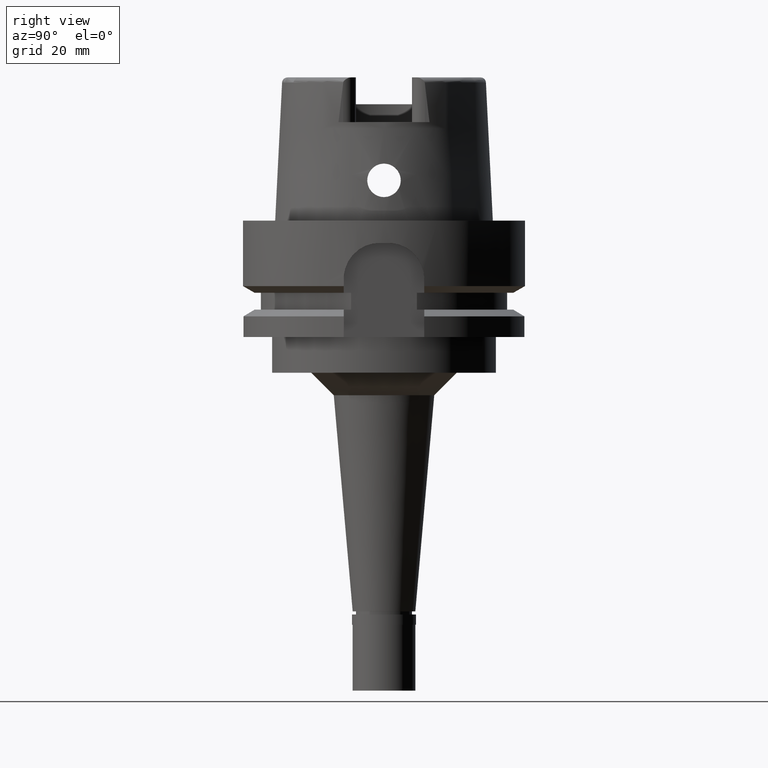
[diagram: clean part render]
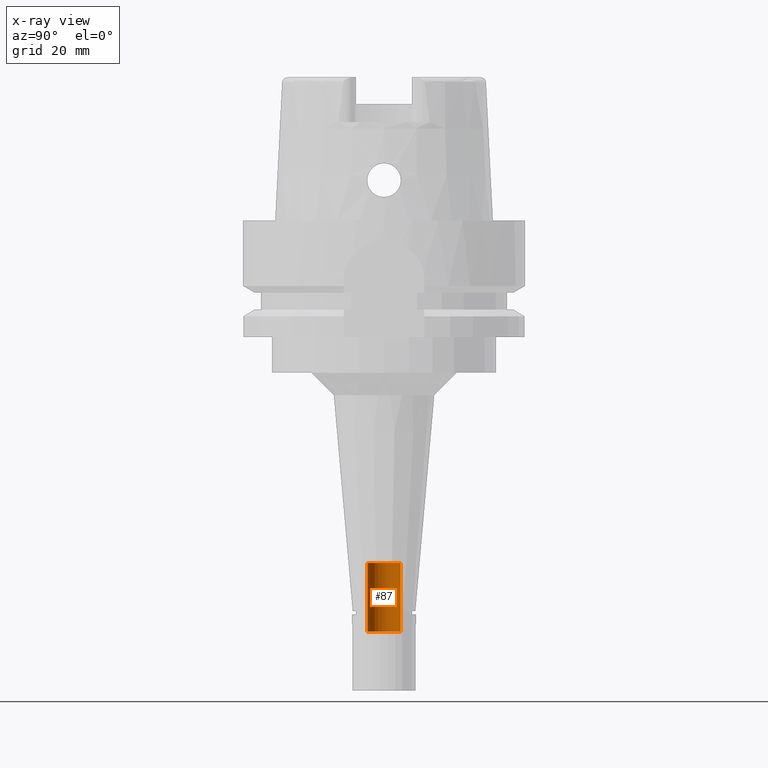
[diagram: x-ray — body ghosted, one internal face saturated and labeled with its STEP entity id]
A machine part, right view, then the same camera in x-ray: the body is ghosted and one INTERNAL B-rep face — a face not visible from any outside direction — is saturated and labeled: STEP entity #87.
In plain terms, the highlighted cylindrical surface (edge-blend (fillet) strip) has radius 3.7 mm, axis along (0, 0, -1).
Its self-contained STEP definition (entity closure, byte-faithful):
#87 = ADVANCED_FACE ( 'NONE', ( #2424 ), #2351, .F. ) ;
#197 = ORIENTED_EDGE ( 'NONE', *, *, #3316, .F. ) ;
#459 = CARTESIAN_POINT ( 'NONE',  ( 0.0000000000000000000, 3.700000000000000178, -91.85595815778998485 ) ) ;
#642 = VERTEX_POINT ( 'NONE', #4968 ) ;
#765 = DIRECTION ( 'NONE',  ( 0.0000000000000000000, 1.000000000000000000, 0.0000000000000000000 ) ) ;
#884 = CARTESIAN_POINT ( 'NONE',  ( 0.0000000000000000000, -3.700000000000000178, -76.50000000000000000 ) ) ;
#1044 = VERTEX_POINT ( 'NONE', #884 ) ;
#1881 = VERTEX_POINT ( 'NONE', #4320 ) ;
#1981 = CARTESIAN_POINT ( 'NONE',  ( 0.0000000000000000000, -3.700000000000000178, -91.85595815778998485 ) ) ;
#2015 = AXIS2_PLACEMENT_3D ( 'NONE', #4471, #2810, #4073 ) ;
#2032 = CARTESIAN_POINT ( 'NONE',  ( 0.0000000000000000000, 0.0000000000000000000, -76.50000000000000000 ) ) ;
#2271 = CIRCLE ( 'NONE', #5077, 3.700000000000000178 ) ;
#2343 = EDGE_CURVE ( 'NONE', #642, #3638, #4232, .T. ) ;
#2346 = ORIENTED_EDGE ( 'NONE', *, *, #2343, .T. ) ;
#2351 = CYLINDRICAL_SURFACE ( 'NONE', #2015, 3.700000000000000178 ) ;
#2366 = CARTESIAN_POINT ( 'NONE',  ( 0.0000000000000000000, 3.700000000000000178, -76.50000000000000000 ) ) ;
#2407 = CIRCLE ( 'NONE', #5135, 3.700000000000000178 ) ;
#2424 = FACE_OUTER_BOUND ( 'NONE', #5328, .T. ) ;
#2572 = EDGE_CURVE ( 'NONE', #3638, #1044, #2271, .T. ) ;
#2637 = ORIENTED_EDGE ( 'NONE', *, *, #2572, .T. ) ;
#2810 = DIRECTION ( 'NONE',  ( 0.0000000000000000000, 0.0000000000000000000, -1.000000000000000000 ) ) ;
#3201 = CARTESIAN_POINT ( 'NONE',  ( 0.0000000000000000000, -1.180902159271999877E-14, -91.85595815778998485 ) ) ;
#3231 = LINE ( 'NONE', #1981, #4981 ) ;
#3316 = EDGE_CURVE ( 'NONE', #1881, #1044, #3231, .T. ) ;
#3554 = DIRECTION ( 'NONE',  ( 0.0000000000000000000, 0.0000000000000000000, -1.000000000000000000 ) ) ;
#3638 = VERTEX_POINT ( 'NONE', #2366 ) ;
#3832 = DIRECTION ( 'NONE',  ( 0.0000000000000000000, 1.576121899274000140E-14, 1.000000000000000000 ) ) ;
#4073 = DIRECTION ( 'NONE',  ( 0.0000000000000000000, -1.000000000000000000, 0.0000000000000000000 ) ) ;
#4199 = DIRECTION ( 'NONE',  ( 0.0000000000000000000, 0.0000000000000000000, 1.000000000000000000 ) ) ;
#4232 = LINE ( 'NONE', #459, #4821 ) ;
#4320 = CARTESIAN_POINT ( 'NONE',  ( 0.0000000000000000000, -3.700000000000000178, -91.85595815778998485 ) ) ;
#4471 = CARTESIAN_POINT ( 'NONE',  ( 0.0000000000000000000, 0.0000000000000000000, 38.64999999999999858 ) ) ;
#4556 = ORIENTED_EDGE ( 'NONE', *, *, #5054, .T. ) ;
#4821 = VECTOR ( 'NONE', #3832, 1000.000000000000000 ) ;
#4872 = DIRECTION ( 'NONE',  ( 0.0000000000000000000, -1.503822729583000109E-14, 1.000000000000000000 ) ) ;
#4968 = CARTESIAN_POINT ( 'NONE',  ( 0.0000000000000000000, 3.700000000000000178, -91.85595815778998485 ) ) ;
#4981 = VECTOR ( 'NONE', #4872, 1000.000000000000000 ) ;
#5054 = EDGE_CURVE ( 'NONE', #1881, #642, #2407, .T. ) ;
#5077 = AXIS2_PLACEMENT_3D ( 'NONE', #2032, #4199, #765 ) ;
#5135 = AXIS2_PLACEMENT_3D ( 'NONE', #3201, #3554, #5260 ) ;
#5260 = DIRECTION ( 'NONE',  ( 0.0000000000000000000, -1.000000000000000000, 0.0000000000000000000 ) ) ;
#5328 = EDGE_LOOP ( 'NONE', ( #2637, #197, #4556, #2346 ) ) ;